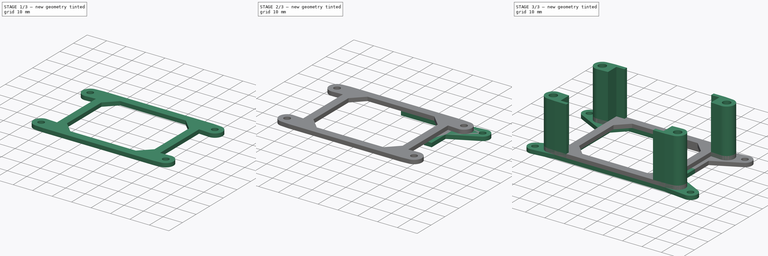
[diagram: build sequence overview — one tinted view per stage of 3, left to right]
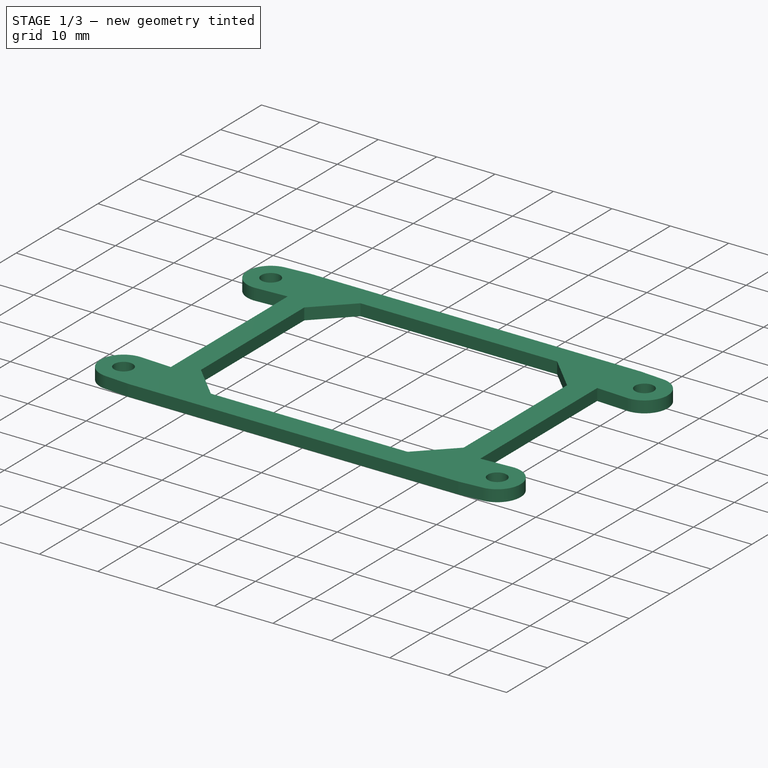
[diagram: stage 1 of 3 — iso view after this stage's code; geometry added in this stage tinted green]
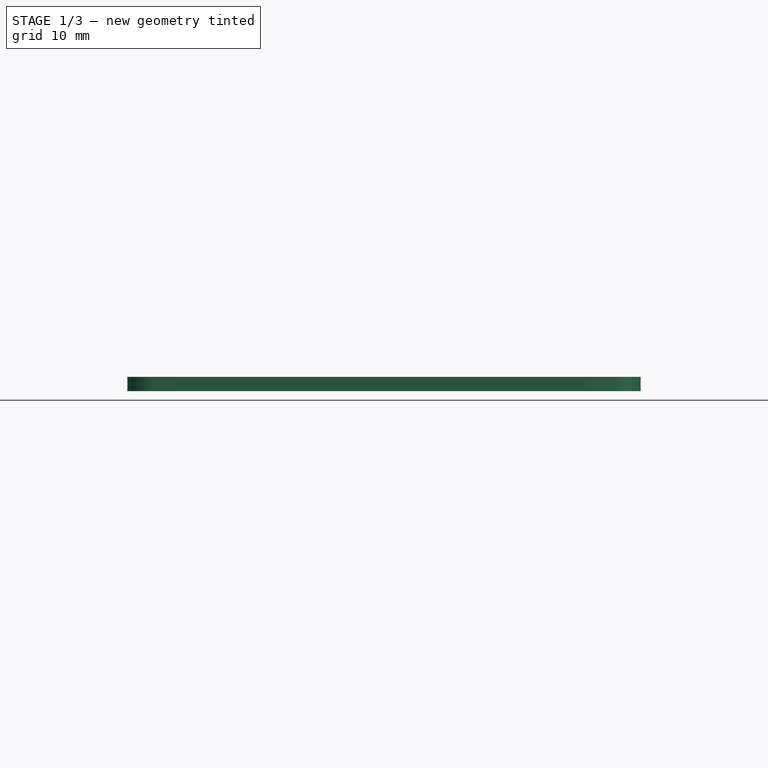
[diagram: stage 1 of 3 — front view after this stage's code; geometry added in this stage tinted green]
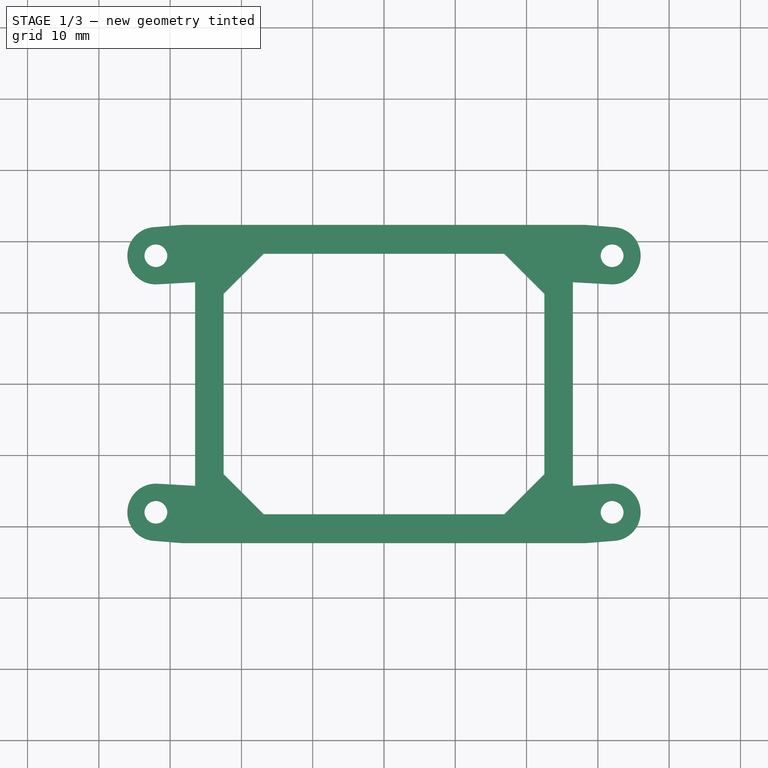
[diagram: stage 1 of 3 — top view after this stage's code; geometry added in this stage tinted green]
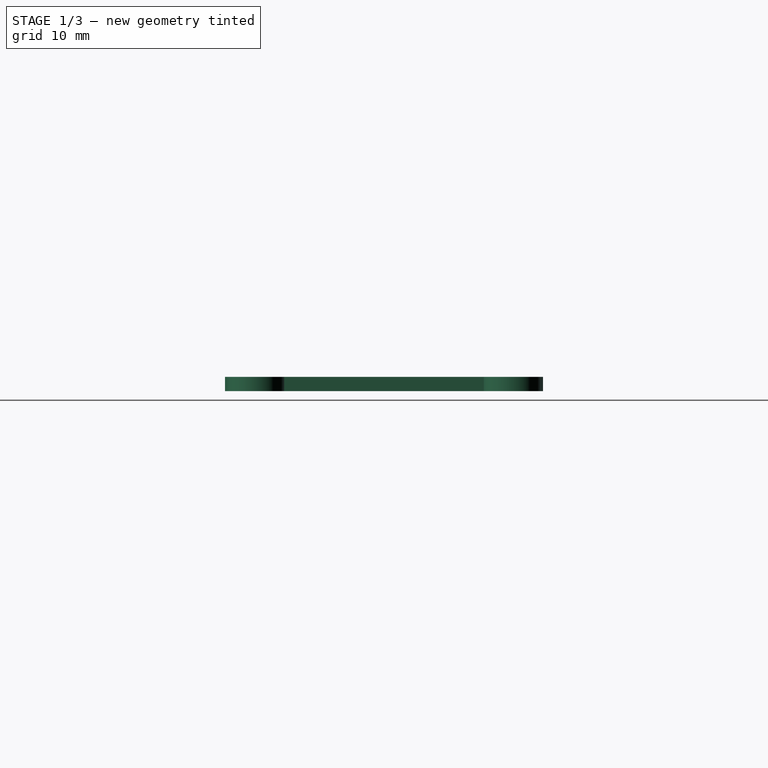
[diagram: stage 1 of 3 — right view after this stage's code; geometry added in this stage tinted green]
FCSTD DOCUMENT  (FreeCAD 0.19R24291 (Git))
Label: airsspy_holder
License: All rights reserved
LicenseURL: http://en.wikipedia.org/wiki/All_rights_reserved
objects: PartDesign::Mirrored×4, Sketcher::SketchObject×3, PartDesign::Pad×3, PartDesign::MultiTransform×2, PartDesign::Body×2, Spreadsheet::Sheet×1, App::Part×1
note: 17 computed .brp shape members not serialized (recipe doc carries the construction recipe); baked Part::Feature solids carry a one-line shape summary decoded from their .brp

FEATURE [PartDesign::Body] Body002  label="Body_base"
  Group = -> [Sketch005,Pad,Sketch,Pad001,MultiTransform,Mirrored,Mirrored001]
  Origin = -> Origin018
  Tip = -> MultiTransform
FEATURE [Sketcher::SketchObject] Sketch006
  FullyConstrained = true
  MapMode = 5
  Support = -> [XY_Plane]
  expr: Constraints[47] = Spreadsheet.frame_width
  expr: Constraints[46] = Spreadsheet.frame_corner_inside
  expr: Constraints[33] = Spreadsheet.corner_length_y
  expr: Constraints[30] = Spreadsheet.brass_insert_y
  expr: Constraints[25] = Spreadsheet.wall_thickness
  expr: Constraints[28] = Spreadsheet.brass_insert_hole_dia + Spreadsheet.brass_insert_wall_thickness * 2
  expr: Constraints[27] = Spreadsheet.hole_dia
  expr: Constraints[9] = Spreadsheet.internal_size_y + Spreadsheet.wall_thickness * 2
  expr: Constraints[29] = Spreadsheet.brass_insert_x
  expr: Constraints[10] = Spreadsheet.internal_size_x
  sketch-geometry (19):
    g0: LineSegment StartX=-26.5 StartY=22.3 StartZ=0 EndX=26.5 EndY=22.3 EndZ=0
    g1: LineSegment StartX=26.5 StartY=22.3 StartZ=0 EndX=26.5 EndY=-22.3 EndZ=0
    g2: LineSegment StartX=26.5 StartY=-22.3 StartZ=0 EndX=-26.5 EndY=-22.3 EndZ=0
    g3: LineSegment StartX=-26.5 StartY=-22.3 StartZ=0 EndX=-26.5 EndY=22.3 EndZ=0
    g4: LineSegment StartX=0 StartY=0 StartZ=0 EndX=26.5 EndY=0 EndZ=0
    g5: LineSegment StartX=26.5 StartY=0 StartZ=0 EndX=26.5 EndY=22.3 EndZ=0
    g6: LineSegment StartX=26.5 StartY=22.3 StartZ=0 EndX=0 EndY=22.3 EndZ=0
    g7: LineSegment StartX=0 StartY=22.3 StartZ=0 EndX=0 EndY=0 EndZ=0
    g8: Circle CenterX=32 CenterY=18 CenterZ=0 NormalX=0 NormalY=0 NormalZ=1 AngleXU=0 Radius=1.6
    g9: LineSegment StartX=26.5 StartY=14.3 StartZ=0 EndX=31.7777 EndY=14.0062 EndZ=0
    g10: LineSegment StartX=32.3103 StartY=21.9879 StartZ=0 EndX=28.3 EndY=22.3 EndZ=0
    g11: LineSegment StartX=26.5 StartY=22.3 StartZ=0 EndX=28.3 EndY=22.3 EndZ=0
    g12: ArcOfCircle CenterX=32 CenterY=18 CenterZ=0 NormalX=0 NormalY=0 NormalZ=1 AngleXU=0 Radius=4 StartAngle=4.65677 EndAngle=7.77633
    g13: LineSegment StartX=26.5 StartY=14.3 StartZ=0 EndX=26.5 EndY=0 EndZ=0
    g14: LineSegment StartX=0 StartY=22.3 StartZ=0 EndX=0 EndY=18.3 EndZ=0
    g15: LineSegment StartX=0 StartY=18.3 StartZ=0 EndX=16.8431 EndY=18.3 EndZ=0
    g16: LineSegment StartX=16.8431 StartY=18.3 StartZ=0 EndX=22.5 EndY=12.6431 EndZ=0
    g17: LineSegment StartX=22.5 StartY=12.6431 StartZ=0 EndX=22.5 EndY=0 EndZ=0
    g18: LineSegment StartX=26.5 StartY=0 StartZ=0 EndX=22.5 EndY=0 EndZ=0
  constraints (50):
    c: Coincident(g0,g1)
    c: Coincident(g1,g2)
    c: Coincident(g2,g3)
    c: Coincident(g3,g0)
    c: Horizontal(g0)
    c: Horizontal(g2)
    c: Vertical(g1)
    c: Vertical(g3)
    c: Symmetric(g0,g2,g-1)
    c: DistanceY(g1,g1) = 44.6
    c: DistanceX(g2,g2) = 53
    c: Coincident(g4,g5)
    c: Coincident(g5,g6)
    c: Coincident(g6,g7)
    c: Coincident(g7,g4)
    c: Horizontal(g4)
    c: Horizontal(g6)
    c: Vertical(g5)
    c: Vertical(g7)
    c: Coincident(g4,g-1)
    c: Coincident(g5,g0)
    c: PointOnObject(g9,g1)
    c: Coincident(g11,g6)
    c: Parallel(g11,g6)
    c: Coincident(g10,g11)
    c: DistanceX(g11,g11) = 1.8
    c: Coincident(g12,g8)
    c: Diameter(g8) = 3.2
    c: Diameter(g12) = 8
    c: DistanceX(g4,g8) = 32
    c: DistanceY(g-1,g8) = 18
    c: Coincident(g13,g9)
    c: Coincident(g13,g4)
    c: DistanceY(g9,g6) = 8
    c: Coincident(g14,g6)
    c: PointOnObject(g14,g7)
    c: Coincident(g15,g14)
    c: Horizontal(g15)
    c: Coincident(g16,g15)
    c: Coincident(g17,g16)
    c: PointOnObject(g17,g4)
    c: Vertical(g17)
    c: Coincident(g18,g13)
    c: Coincident(g18,g17)
    c: Angle(g16,g17) = 2.35619
    c: Equal(g18,g14)
    c: Distance(g16) = 8
    c: DistanceX(g18,g18) = 4
    c: Tangent(g12,g9) = -1.5708
    c: Tangent(g12,g10) = -1.5708
FEATURE [PartDesign::Pad] Pad002
  Direction = (1,1,1)
  Length = 2
  Length2 = 100
  Profile = -> Sketch006
  Type = 0
FEATURE [PartDesign::Mirrored] Mirrored002
  MirrorPlane = -> Sketch006 [V_Axis]
FEATURE [PartDesign::Mirrored] Mirrored003
  MirrorPlane = -> Sketch006 [H_Axis]
FEATURE [PartDesign::MultiTransform] MultiTransform001
  BaseFeature = -> Pad002
  Originals = -> [Pad002]
  Transformations = -> [Mirrored002,Mirrored003]
FEATURE [PartDesign::Body] Body  label="Body_lid"
  Group = -> [Sketch006,Pad002,MultiTransform001,Mirrored002,Mirrored003]
  Origin = -> Origin
  Placement = pos=(0,0,25) rot=(0,0,1;0rad)
  Tip = -> MultiTransform001
  expr: .Placement.Base.z = Spreadsheet.wall_height
FEATURE [App::Part] Part005  label="HackRF_One_holder"
  Group = -> [Body002,Body]
  Origin = -> Origin017
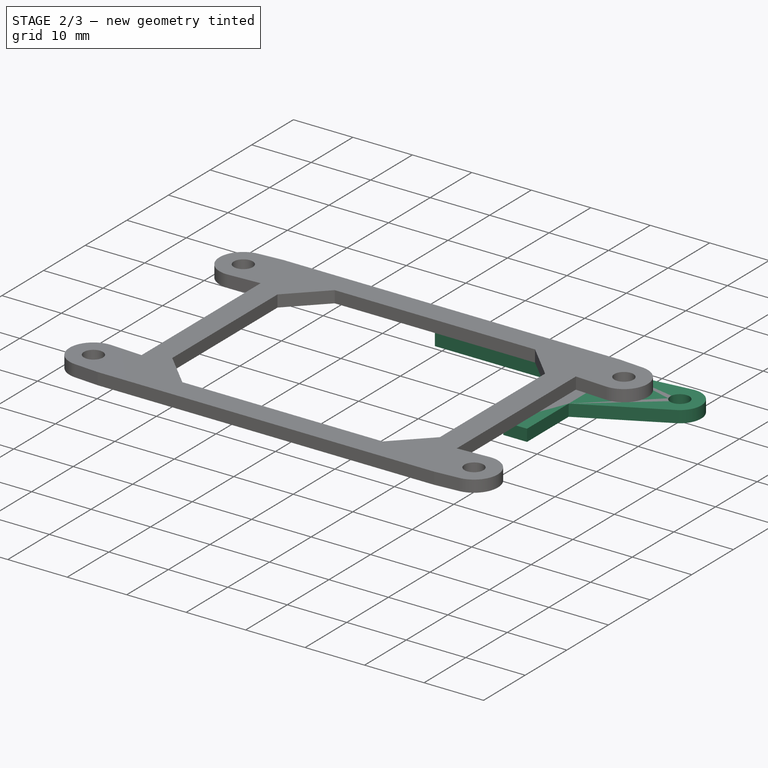
[diagram: stage 2 of 3 — iso view after this stage's code; geometry added in this stage tinted green]
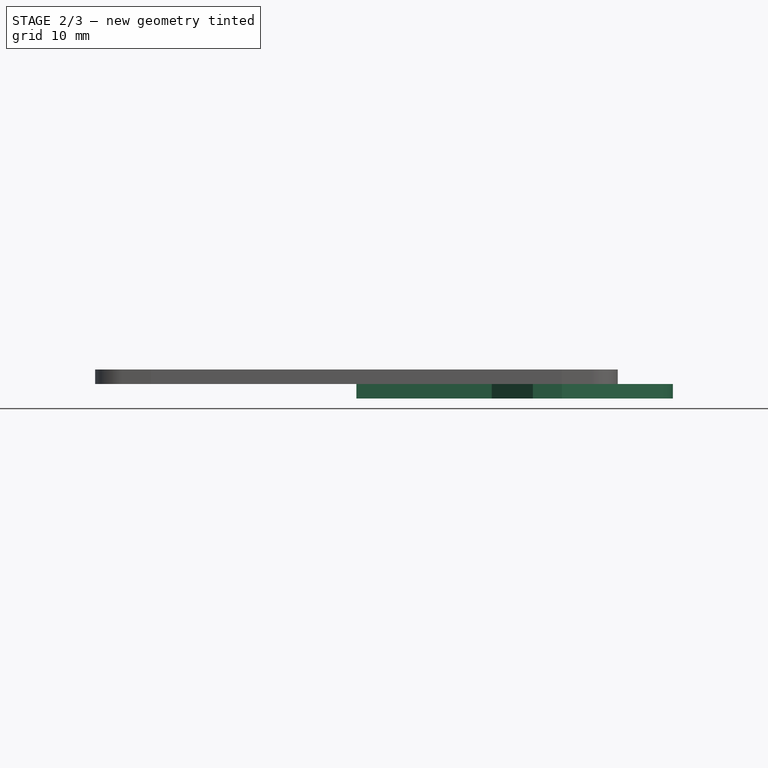
[diagram: stage 2 of 3 — front view after this stage's code; geometry added in this stage tinted green]
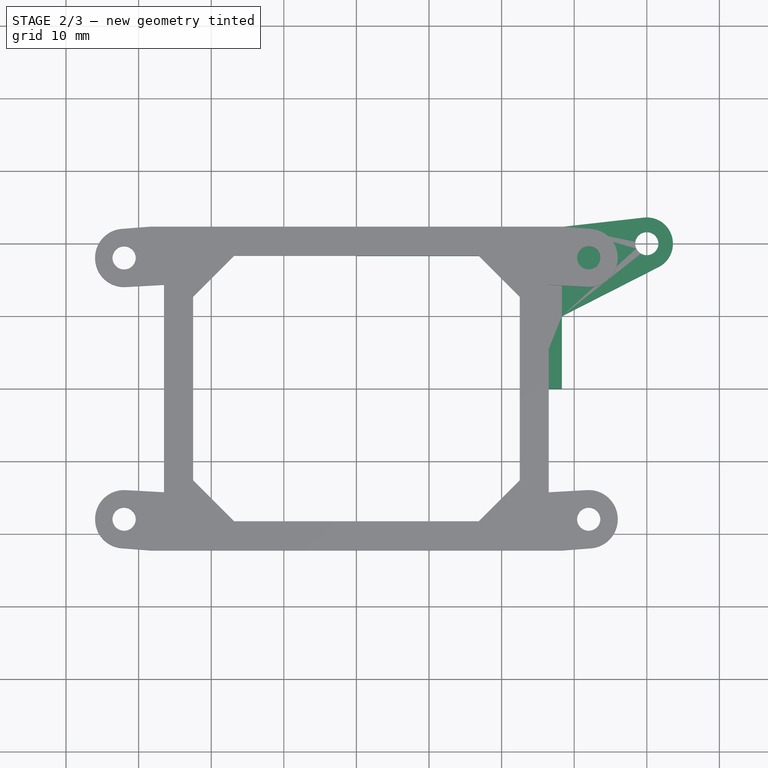
[diagram: stage 2 of 3 — top view after this stage's code; geometry added in this stage tinted green]
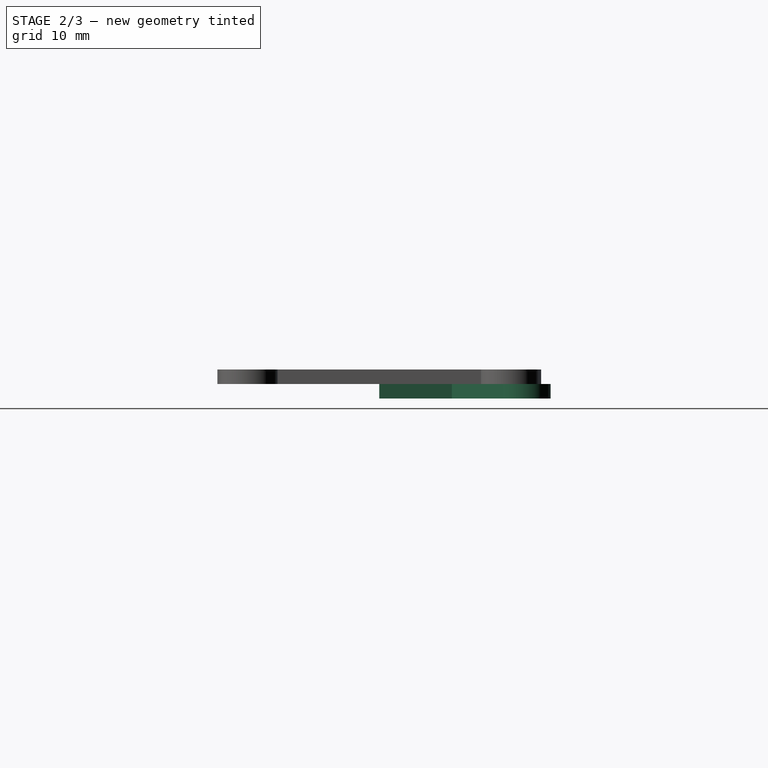
[diagram: stage 2 of 3 — right view after this stage's code; geometry added in this stage tinted green]
FEATURE [Sketcher::SketchObject] Sketch005
  FullyConstrained = true
  MapMode = 5
  Support = -> [XY_Plane018]
  expr: Constraints[47] = Spreadsheet.frame_width
  expr: Constraints[33] = Spreadsheet.mid_clearance / 2
  expr: Constraints[28] = Spreadsheet.hole_x_dist / 2
  expr: Constraints[25] = Spreadsheet.hole_y_dist / 2
  expr: Constraints[48] = Spreadsheet.hole_dia + Spreadsheet.feet_hole_wall_thickness * 2
  expr: Constraints[44] = Spreadsheet.frame_corner_inside
  expr: Constraints[23] = Spreadsheet.internal_size_x + Spreadsheet.wall_thickness * 2
  expr: Constraints[27] = Spreadsheet.hole_dia
  expr: Constraints[22] = Spreadsheet.internal_size_y + Spreadsheet.wall_thickness * 2
  sketch-geometry (18):
    g0: LineSegment StartX=-28.3 StartY=22.3 StartZ=0 EndX=28.3 EndY=22.3 EndZ=0
    g1: LineSegment StartX=28.3 StartY=22.3 StartZ=0 EndX=28.3 EndY=-22.3 EndZ=0
    g2: LineSegment StartX=28.3 StartY=-22.3 StartZ=0 EndX=-28.3 EndY=-22.3 EndZ=0
    g3: LineSegment StartX=-28.3 StartY=-22.3 StartZ=0 EndX=-28.3 EndY=22.3 EndZ=0
    g4: LineSegment StartX=0 StartY=0 StartZ=0 EndX=28.3 EndY=0 EndZ=0
    g5: LineSegment StartX=28.3 StartY=22.3 StartZ=0 EndX=0 EndY=22.3 EndZ=0
    g6: LineSegment StartX=0 StartY=22.3 StartZ=0 EndX=0 EndY=0 EndZ=0
    g7: LineSegment StartX=28.3 StartY=0 StartZ=0 EndX=28.3 EndY=10 EndZ=0
    g8: ArcOfCircle CenterX=40 CenterY=20 CenterZ=0 NormalX=0 NormalY=0 NormalZ=1 AngleXU=0 Radius=3.6 StartAngle=5.18352 EndAngle=7.96658
    g9: LineSegment StartX=28.3 StartY=10 StartZ=0 EndX=41.634 EndY=16.7922 EndZ=0
    g10: LineSegment StartX=39.5955 StartY=23.5772 StartZ=0 EndX=28.3 EndY=22.3 EndZ=0
    g11: Circle CenterX=40 CenterY=20 CenterZ=0 NormalX=0 NormalY=0 NormalZ=1 AngleXU=0 Radius=1.6
    g12: LineSegment StartX=39.5955 StartY=23.5772 StartZ=0 EndX=40 EndY=20 EndZ=0
    g13: LineSegment StartX=0 StartY=22.3 StartZ=0 EndX=0 EndY=18.3 EndZ=0
    g14: LineSegment StartX=0 StartY=18.3 StartZ=0 EndX=18.6431 EndY=18.3 EndZ=0
    g15: LineSegment StartX=18.6431 StartY=18.3 StartZ=0 EndX=24.3 EndY=12.6431 EndZ=0
    g16: LineSegment StartX=24.3 StartY=12.6431 StartZ=0 EndX=24.3 EndY=0 EndZ=0
    g17: LineSegment StartX=24.3 StartY=0 StartZ=0 EndX=28.3 EndY=0 EndZ=0
  constraints (49):
    c: Coincident(g0,g1)
    c: Coincident(g1,g2)
    c: Coincident(g2,g3)
    c: Coincident(g3,g0)
    c: Horizontal(g0)
    c: Horizontal(g2)
    c: Vertical(g1)
    c: Vertical(g3)
    c: Symmetric(g0,g2,g-1)
    c: Coincident(g5,g6)
    c: Coincident(g6,g4)
    c: Horizontal(g4)
    c: Horizontal(g5)
    c: Vertical(g6)
    c: Coincident(g4,g-1)
    c: Coincident(g7,g4)
    c: PointOnObject(g7,g1)
    c: Vertical(g7)
    c: Coincident(g9,g7)
    c: Coincident(g9,g8)
    c: Coincident(g10,g8)
    c: Coincident(g10,g5)
    c: DistanceY(g1,g1) = 44.6
    c: DistanceX(g2,g2) = 56.6
    c: Coincident(g5,g0)
    c: DistanceY(g-1,g8) = 20
    c: Coincident(g11,g8)
    c: Diameter(g11) = 3.2
    c: DistanceX(g4,g8) = 40
    c: Tangent(g8,g10) = -1.5708
    c: Coincident(g12,g8)
    c: Coincident(g12,g8)
    c: Tangent(g8,g9) = -1.5708
    c: DistanceY(g7,g7) = 10
    c: Coincident(g13,g5)
    c: PointOnObject(g13,g6)
    c: Coincident(g14,g13)
    c: Horizontal(g14)
    c: Coincident(g15,g14)
    c: Coincident(g16,g15)
    c: PointOnObject(g16,g4)
    c: Vertical(g16)
    c: Coincident(g17,g16)
    c: Coincident(g17,g7)
    c: Distance(g15) = 8
    c: Angle(g15,g16) = 2.35619
    c: Equal(g17,g13)
    c: DistanceX(g17,g17) = 4
    c: Diameter(g8) = 7.2
FEATURE [Spreadsheet::Sheet] Spreadsheet  label="Spreadsheet_for_box_holders"
  cells = B1=[mm]; E1=printer params; A2=internal_size_x; B2(internal_size_x)=53; E2=extrusion_width; F2(extrusion_width)=0.45; A3=internal_size_y; B3(internal_size_y)=41; E3=wall_count; F3(wall_count)=4; A4=wall_thickness; B4(wall_thickness)==extrusion_width * wall_count; A5=corner_length_x; B5(corner_length_x)=6; A6=corner_length_y; B6(corner_length_y)=8; A7=hole_x_dist; B7(hole_x_dist)=80; A8=hole_y_dist; B8(hole_y_dist)=40; A9=hole_dia; B9(hole_dia)=3.2; A10=wall_height; B10(wall_height)=25; A11=mid_clearance; B11(mid_clearance)=20; A12=brass_insert_hole_dia; B12(brass_insert_hole_dia)=4; A13=brass_insert_wall_thickness; B13(brass_insert_wall_thickness)=2; A14=brass_insert_x; B14(brass_insert_x)=32; A15=brass_insert_y; B15(brass_insert_y)=18; A16=frame_corner_inside; B16(frame_corner_inside)=8; A17=frame_width; B17(frame_width)=4; A18=feet_hole_wall_thickness; B18(feet_hole_wall_thickness)=2
FEATURE [PartDesign::Pad] Pad
  Direction = (1,1,1)
  Length = 2
  Length2 = 100
  Profile = -> Sketch005
  Reversed = true
  Type = 0
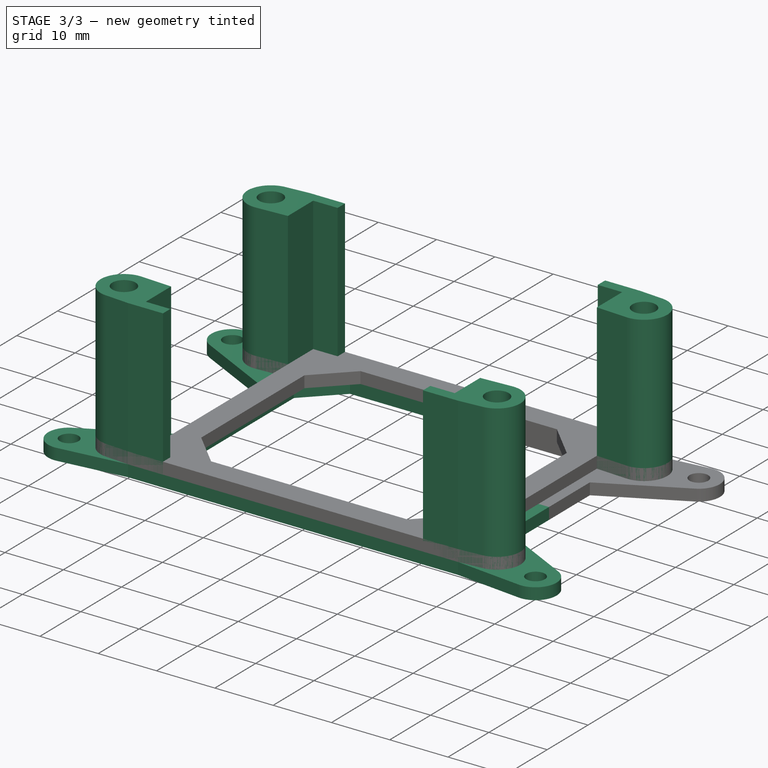
[diagram: stage 3 of 3 — iso view after this stage's code; geometry added in this stage tinted green]
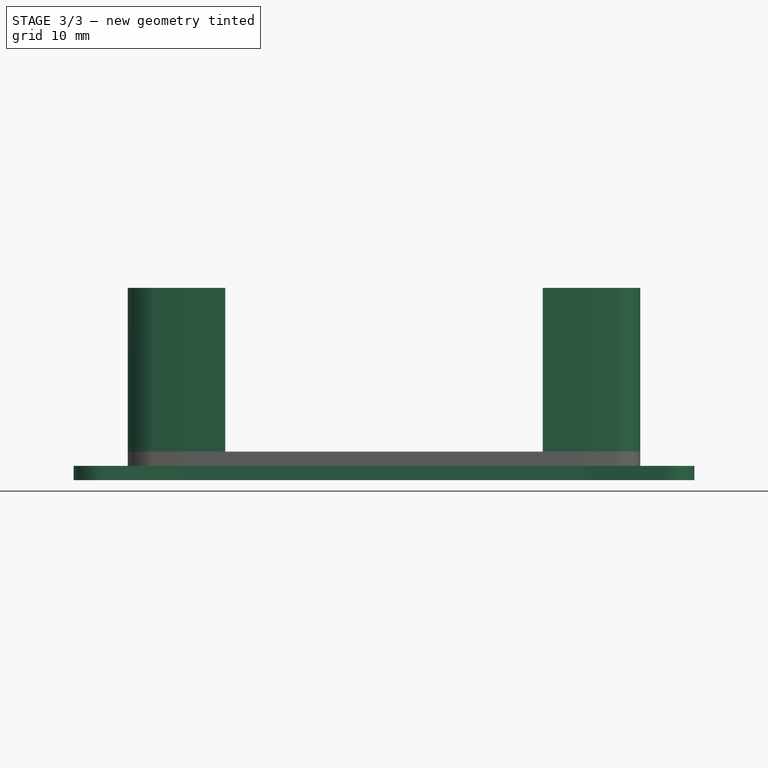
[diagram: stage 3 of 3 — front view after this stage's code; geometry added in this stage tinted green]
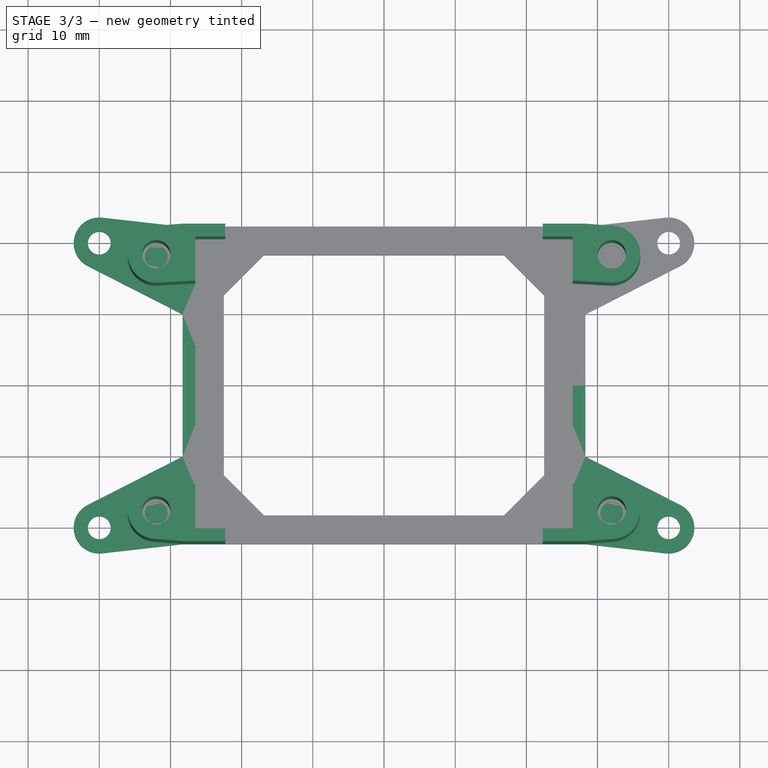
[diagram: stage 3 of 3 — top view after this stage's code; geometry added in this stage tinted green]
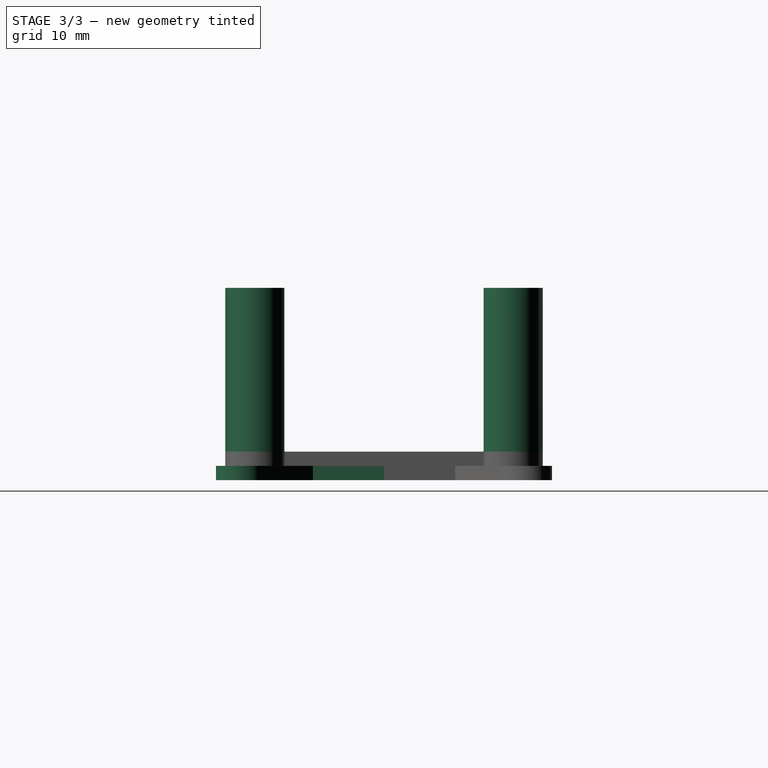
[diagram: stage 3 of 3 — right view after this stage's code; geometry added in this stage tinted green]
FEATURE [Sketcher::SketchObject] Sketch
  ExternalGeometry = -> [Pad]
  FullyConstrained = false
  MapMode = 5
  Support = -> [Pad]
  expr: Constraints[25] = Spreadsheet.brass_insert_x
  expr: Constraints[24] = Spreadsheet.wall_thickness
  expr: Constraints[17] = Spreadsheet.brass_insert_y
  expr: Constraints[9] = Spreadsheet.corner_length_x
  expr: Constraints[16] = Spreadsheet.brass_insert_wall_thickness * 2 + Spreadsheet.brass_insert_hole_dia
  expr: Constraints[15] = Spreadsheet.brass_insert_hole_dia
  expr: Constraints[10] = Spreadsheet.corner_length_y
  sketch-geometry (10):
    g0: LineSegment StartX=22.3 StartY=22.3 StartZ=0 EndX=28.3 EndY=22.3 EndZ=0
    g1: LineSegment StartX=28.3 StartY=22.3 StartZ=0 EndX=28.3 EndY=14.3 EndZ=0
    g2: LineSegment StartX=28.3 StartY=14.3 StartZ=0 EndX=26.5 EndY=14.3 EndZ=0
    g3: LineSegment StartX=26.5 StartY=14.3 StartZ=0 EndX=26.5 EndY=20.5 EndZ=0
    g4: LineSegment StartX=26.5 StartY=20.5 StartZ=0 EndX=22.3049 EndY=20.5 EndZ=0
    g5: LineSegment StartX=22.3049 StartY=20.5 StartZ=0 EndX=22.3 EndY=22.3 EndZ=0
    g6: Circle CenterX=32 CenterY=18 CenterZ=0 NormalX=0 NormalY=0 NormalZ=1 AngleXU=0 Radius=2
    g7: ArcOfCircle CenterX=32 CenterY=18 CenterZ=0 NormalX=0 NormalY=0 NormalZ=1 AngleXU=0 Radius=4 StartAngle=4.65677 EndAngle=7.77633
    g8: LineSegment StartX=32.3103 StartY=21.9879 StartZ=0 EndX=28.3 EndY=22.3 EndZ=0
    g9: LineSegment StartX=26.5 StartY=14.3 StartZ=0 EndX=31.7777 EndY=14.0062 EndZ=0
  constraints (26):
    c: Coincident(g1,g0)
    c: Vertical(g1)
    c: Coincident(g2,g1)
    c: Horizontal(g2)
    c: Coincident(g3,g2)
    c: Coincident(g4,g3)
    c: Horizontal(g4)
    c: Coincident(g5,g4)
    c: Coincident(g5,g0)
    c: DistanceX(g0,g0) = 6
    c: DistanceY(g1,g1) = 8
    c: Equal(g2,g5)
    c: Coincident(g7,g6)
    c: Coincident(g8,g0)
    c: Tangent(g8,g7) = -1.5708
    c: Diameter(g6) = 4
    c: Diameter(g7) = 8
    c: DistanceY(g-1,g6) = 18
    c: Coincident(g9,g3)
    c: Coincident(g9,g7)
    c: Tangent(g7,g9) = -1.5708
    c: Coincident(g0,g-3)
    c: PointOnObject(g0,g-3)
    c: Vertical(g3)
    c: DistanceX(g2,g2) = 1.8
    c: DistanceX(g-1,g6) = 32
FEATURE [PartDesign::Pad] Pad001
  BaseFeature = -> Pad
  Direction = (1,1,1)
  Length = 25
  Length2 = 100
  Profile = -> Sketch
  Type = 0
  expr: Length = Spreadsheet.wall_height
FEATURE [PartDesign::Mirrored] Mirrored
  MirrorPlane = -> Sketch005 [V_Axis]
FEATURE [PartDesign::Mirrored] Mirrored001
  MirrorPlane = -> Sketch005 [H_Axis]
FEATURE [PartDesign::MultiTransform] MultiTransform
  BaseFeature = -> Pad001
  Originals = -> [Pad,Pad001]
  Transformations = -> [Mirrored,Mirrored001]
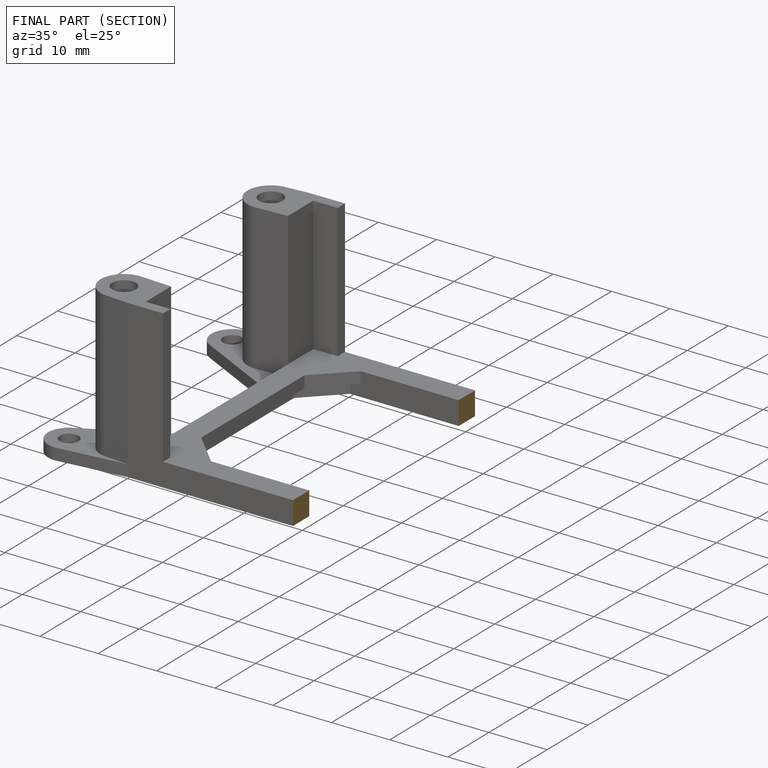
[diagram: finished part — half-section view (interior)]
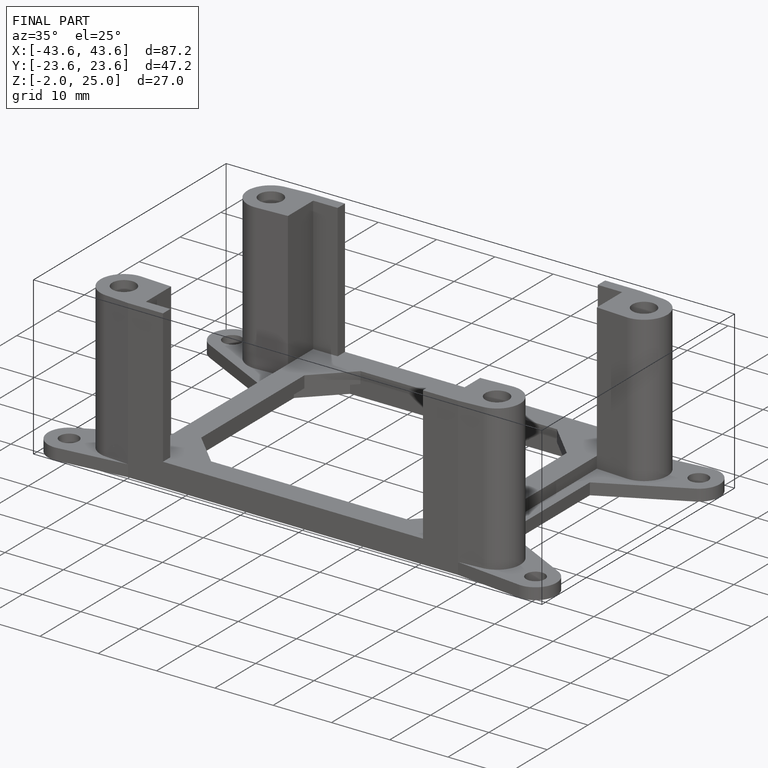
[diagram: finished part — iso view with bounding-box wireframe]
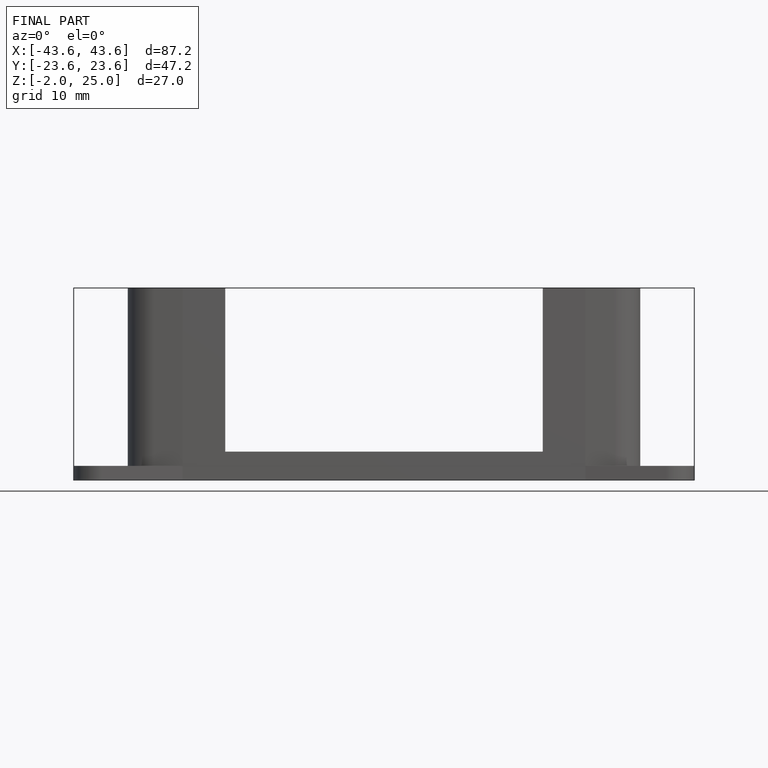
[diagram: finished part — front view with bounding-box wireframe]
